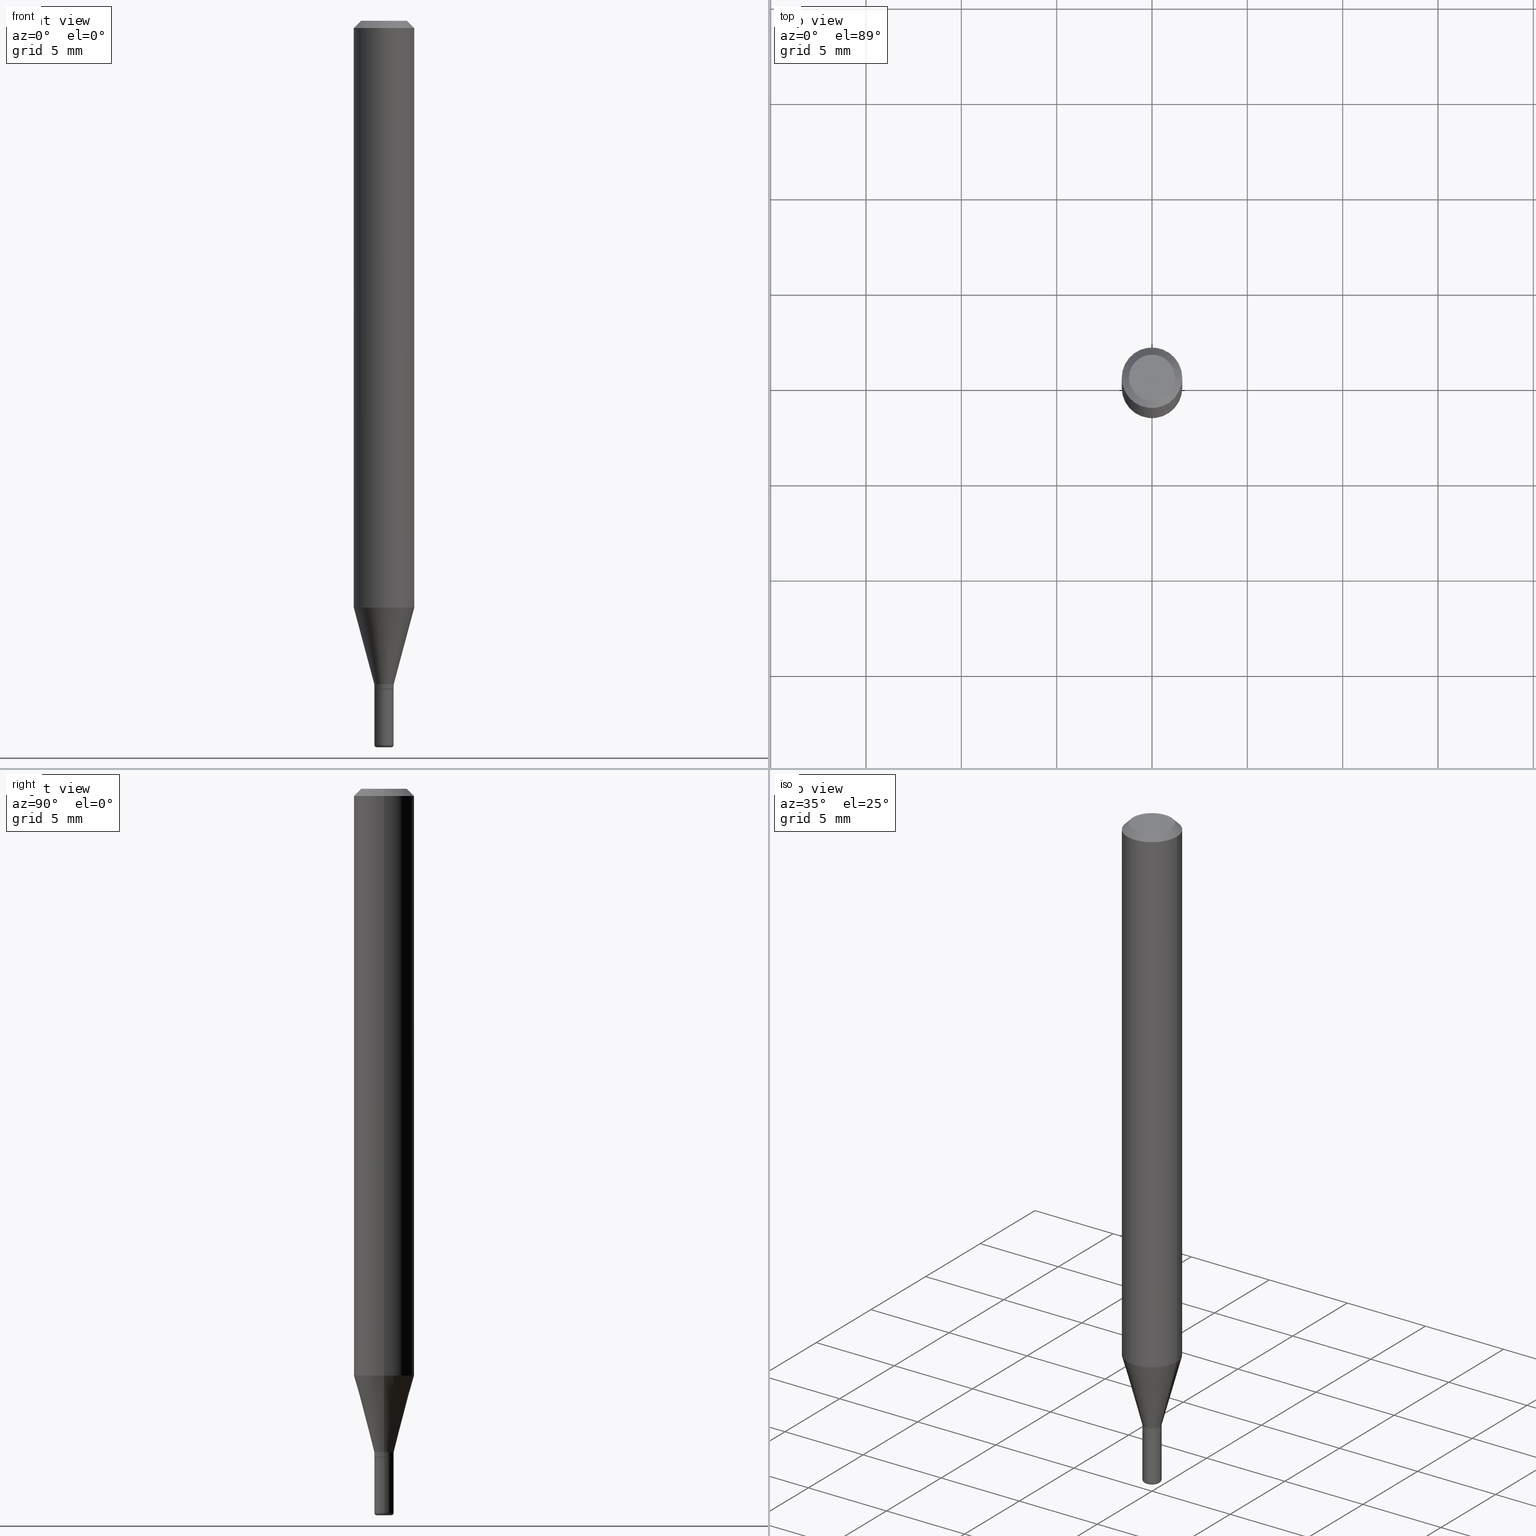
[diagram: canonical four-view strip — front | top / right | iso, engineering-drawing reading convention]
A machine part, canonical four-view strip (front | top / right | iso — engineering-drawing reading convention). The complete STEP part file that produces these views, byte-faithful:
ISO-10303-21;
HEADER;
FILE_DESCRIPTION (( 'STEP AP203' ),
    '1' );
FILE_NAME ('08514.STEP',
    '2024-02-29T19:40:19',
    ( '' ),
    ( '' ),
    'SwSTEP 2.0',
    'SolidWorks 2023',
    '' );
FILE_SCHEMA (( 'CONFIG_CONTROL_DESIGN' ));
ENDSEC;

DATA;
#1 = CC_DESIGN_APPROVAL ( #310, ( #340 ) ) ;
#2 = EDGE_LOOP ( 'NONE', ( #160, #446, #58, #206 ) ) ;
#3 = APPROVAL_STATUS ( 'not_yet_approved' ) ;
#4 = ORIENTED_EDGE ( 'NONE', *, *, #103, .T. ) ;
#5 = ORIENTED_EDGE ( 'NONE', *, *, #415, .F. ) ;
#6 = VECTOR ( 'NONE', #191, 39.37007874015748854 ) ;
#7 = ORIENTED_EDGE ( 'NONE', *, *, #27, .T. ) ;
#8 = APPROVAL_PERSON_ORGANIZATION ( #278, #310, #272 ) ;
#9 = DIRECTION ( 'NONE',  ( 1.000000000000000000, 0.000000000000000000, 0.000000000000000000 ) ) ;
#10 = ORIENTED_EDGE ( 'NONE', *, *, #398, .F. ) ;
#11 = DIRECTION ( 'NONE',  ( -2.445468806185136597E-29, 3.491481338843145583E-15, 1.000000000000000000 ) ) ;
#12 = ADVANCED_FACE ( 'NONE', ( #214 ), #100, .T. ) ;
#13 = CYLINDRICAL_SURFACE ( 'NONE', #443, 0.06250000000000000000 ) ;
#14 = DIRECTION ( 'NONE',  ( 1.000000000000000000, -6.982962677686256455E-15, 0.000000000000000000 ) ) ;
#15 = DIRECTION ( 'NONE',  ( 1.000000000000000000, -6.982962677686265922E-15, 4.876176775795934672E-29 ) ) ;
#16 = CIRCLE ( 'NONE', #85, 0.02000000000000008021 ) ;
#17 = CARTESIAN_POINT ( 'NONE',  ( 0.02000000000000009062, -1.396592535537259554E-16, 9.752353551591915727E-31 ) ) ;
#18 = DIRECTION ( 'NONE',  ( -2.445468806185136597E-29, 3.491481338843145583E-15, 1.000000000000000000 ) ) ;
#19 = CARTESIAN_POINT ( 'NONE',  ( 3.350292264473637608E-29, -4.783329434215110683E-15, -1.370000000000000329 ) ) ;
#20 = EDGE_LOOP ( 'NONE', ( #5, #487, #90, #393 ) ) ;
#21 = DIRECTION ( 'NONE',  ( 2.445468806185136597E-29, -3.491481338843145583E-15, -1.000000000000000000 ) ) ;
#22 = CIRCLE ( 'NONE', #242, 0.02000000000000018083 ) ;
#23 = CARTESIAN_POINT ( 'NONE',  ( 0.06250000000000000000, -4.811533449433669144E-16, -0.01499999999999970281 ) ) ;
#24 = APPLICATION_CONTEXT ( 'configuration controlled 3d designs of mechanical parts and assemblies' ) ;
#25 = CARTESIAN_POINT ( 'NONE',  ( 2.962411176570810218E-29, -4.229538039829860109E-15, -1.211387840678323391 ) ) ;
#26 = CARTESIAN_POINT ( 'NONE',  ( 3.374746952535488593E-29, -4.818244247603541543E-15, -1.380000000000000115 ) ) ;
#27 = EDGE_CURVE ( 'NONE', #93, #367, #243, .T. ) ;
#28 = EDGE_CURVE ( 'NONE', #244, #88, #291, .T. ) ;
#29 = DIRECTION ( 'NONE',  ( -1.000000000000000000, 6.982962677686266711E-15, 0.000000000000000000 ) ) ;
#30 = DIRECTION ( 'NONE',  ( 1.000000000000000000, -6.982962677686266711E-15, 4.876176775795935793E-29 ) ) ;
#31 = DIRECTION ( 'NONE',  ( -2.445468806185136597E-29, 3.491481338843145583E-15, 1.000000000000000000 ) ) ;
#32 = CARTESIAN_POINT ( 'NONE',  ( 3.374746952535488593E-29, -4.818244247603541543E-15, -1.380000000000000115 ) ) ;
#33 = COORDINATED_UNIVERSAL_TIME_OFFSET ( 5, 0, .BEHIND. ) ;
#34 = AXIS2_PLACEMENT_3D ( 'NONE', #113, #195, #510 ) ;
#35 = DIRECTION ( 'NONE',  ( 1.000000000000000000, -6.982962677686276177E-15, 0.000000000000000000 ) ) ;
#36 = APPROVAL_ROLE ( '' ) ;
#37 = CARTESIAN_POINT ( 'NONE',  ( -0.02000000000000008021, -4.213334858521442823E-15, -1.370000000000000329 ) ) ;
#38 = CALENDAR_DATE ( 2024, 29, 2 ) ;
#39 = VERTEX_POINT ( 'NONE', #96 ) ;
#40 = DIMENSIONAL_EXPONENTS ( 1.000000000000000000, 0.000000000000000000, 0.000000000000000000, 0.000000000000000000, 0.000000000000000000, 0.000000000000000000, 0.000000000000000000 ) ;
#41 = SECURITY_CLASSIFICATION_LEVEL ( 'unclassified' ) ;
#42 = EDGE_LOOP ( 'NONE', ( #81, #459, #164, #336 ) ) ;
#43 = UNCERTAINTY_MEASURE_WITH_UNIT (LENGTH_MEASURE( 1.000000000000000082E-05 ), #220, 'distance_accuracy_value', 'NONE');
#44 = EDGE_CURVE ( 'NONE', #256, #127, #129, .T. ) ;
#45 = ADVANCED_BREP_SHAPE_REPRESENTATION ( '08514', ( #123, #457, #159 ), #315 ) ;
#46 = ORIENTED_EDGE ( 'NONE', *, *, #493, .T. ) ;
#47 = EDGE_LOOP ( 'NONE', ( #279, #54, #126, #198 ) ) ;
#48 = CONICAL_SURFACE ( 'NONE', #185, 0.01950000000000008671, 0.7853981633972775267 ) ;
#49 = ORIENTED_EDGE ( 'NONE', *, *, #99, .F. ) ;
#50 = LOCAL_TIME ( 14, 40, 19.00000000000000000, #33 ) ;
#51 = EDGE_CURVE ( 'NONE', #244, #516, #250, .T. ) ;
#52 = MECHANICAL_CONTEXT ( 'NONE', #489, 'mechanical' ) ;
#53 = FACE_OUTER_BOUND ( 'NONE', #209, .T. ) ;
#54 = ORIENTED_EDGE ( 'NONE', *, *, #397, .T. ) ;
#55 = CARTESIAN_POINT ( 'NONE',  ( 0.000000000000000000, 0.000000000000000000, 0.000000000000000000 ) ) ;
#56 = DIRECTION ( 'NONE',  ( -2.445468806185136597E-29, 3.491481338843145583E-15, 1.000000000000000000 ) ) ;
#57 = DIRECTION ( 'NONE',  ( -0.7071067811865479058, 2.468850131082261005E-15, -0.7071067811865471286 ) ) ;
#58 = ORIENTED_EDGE ( 'NONE', *, *, #44, .T. ) ;
#59 = LENGTH_MEASURE_WITH_UNIT ( LENGTH_MEASURE( 0.02539999999999999897 ), #264 );
#60 = LINE ( 'NONE', #255, #64 ) ;
#61 = CARTESIAN_POINT ( 'NONE',  ( 3.655975865246779122E-29, -5.219764601570503141E-15, -1.495000000000000107 ) ) ;
#62 = DIRECTION ( 'NONE',  ( 1.000000000000000000, -6.982962677686276177E-15, 0.000000000000000000 ) ) ;
#63 = DIRECTION ( 'NONE',  ( -1.000000000000000000, 7.105427357601058657E-15, 0.000000000000000000 ) ) ;
#64 = VECTOR ( 'NONE', #211, 39.37007874015748143 ) ;
#65 = CIRCLE ( 'NONE', #305, 0.06250000000000000000 ) ;
#66 = LINE ( 'NONE', #352, #295 ) ;
#67 = ADVANCED_FACE ( 'NONE', ( #53 ), #13, .T. ) ;
#68 = EDGE_CURVE ( 'NONE', #127, #403, #218, .T. ) ;
#69 = DIRECTION ( 'NONE',  ( -2.445468806185136597E-29, 3.491481338843145583E-15, 1.000000000000000000 ) ) ;
#70 = CARTESIAN_POINT ( 'NONE',  ( -0.02000000000000008021, -4.641220887063090519E-15, -1.370000000000000329 ) ) ;
#71 = CC_DESIGN_PERSON_AND_ORGANIZATION_ASSIGNMENT ( #396, #355, ( #479 ) ) ;
#72 = DIRECTION ( 'NONE',  ( 1.000000000000000000, -6.982962677686269866E-15, 4.883557194083113462E-29 ) ) ;
#73 = CARTESIAN_POINT ( 'NONE',  ( 0.06250000000000000000, -4.665973207185250989E-15, -1.211387840678323391 ) ) ;
#74 = DATE_AND_TIME ( #392, #141 ) ;
#75 = DIRECTION ( 'NONE',  ( -0.7071067811864267805, 7.493145998869918709E-15, 0.7071067811866682540 ) ) ;
#76 = APPROVAL_DATE_TIME ( #74, #84 ) ;
#77 = CIRCLE ( 'NONE', #357, 0.04750000000000000749 ) ;
#78 = AXIS2_PLACEMENT_3D ( 'NONE', #505, #69, #152 ) ;
#79 = ORIENTED_EDGE ( 'NONE', *, *, #28, .T. ) ;
#80 = DIRECTION ( 'NONE',  ( 1.000000000000000000, -6.982962677686256455E-15, 0.000000000000000000 ) ) ;
#81 = ORIENTED_EDGE ( 'NONE', *, *, #184, .F. ) ;
#82 = PERSON_AND_ORGANIZATION_ROLE ( 'creator' ) ;
#83 = ORIENTED_EDGE ( 'NONE', *, *, #415, .T. ) ;
#84 = APPROVAL ( #189, 'UNSPECIFIED' ) ;
#85 = AXIS2_PLACEMENT_3D ( 'NONE', #387, #31, #424 ) ;
#86 = EDGE_CURVE ( 'NONE', #114, #256, #332, .T. ) ;
#87 = CONICAL_SURFACE ( 'NONE', #132, 0.06250000000000000000, 0.7853981633974488341 ) ;
#88 = VERTEX_POINT ( 'NONE', #296 ) ;
#89 = ORIENTED_EDGE ( 'NONE', *, *, #237, .T. ) ;
#90 = ORIENTED_EDGE ( 'NONE', *, *, #343, .T. ) ;
#91 = APPLICATION_PROTOCOL_DEFINITION ( 'international standard', 'config_control_design', 1994, #24 ) ;
#92 = CONICAL_SURFACE ( 'NONE', #263, 0.02000000000000008021, 0.2617993877991493523 ) ;
#93 = VERTEX_POINT ( 'NONE', #337 ) ;
#94 = LOCAL_TIME ( 14, 40, 19.00000000000000000, #121 ) ;
#95 = ORIENTED_EDGE ( 'NONE', *, *, #138, .F. ) ;
#96 = CARTESIAN_POINT ( 'NONE',  ( -0.04750000000000000749, 3.578768372314221353E-16, 2.731847993664239060E-16 ) ) ;
#97 = PRODUCT ( '08514', '08514', '', ( #52 ) ) ;
#98 = DIRECTION ( 'NONE',  ( -2.438088387897960049E-29, 3.491481338843145188E-15, 1.000000000000000000 ) ) ;
#99 = EDGE_CURVE ( 'NONE', #127, #498, #441, .T. ) ;
#100 = CYLINDRICAL_SURFACE ( 'NONE', #316, 0.02000000000000008715 ) ;
#101 = AXIS2_PLACEMENT_3D ( 'NONE', #331, #280, #333 ) ;
#102 = FACE_OUTER_BOUND ( 'NONE', #354, .T. ) ;
#103 = EDGE_CURVE ( 'NONE', #325, #399, #130, .T. ) ;
#104 = DIRECTION ( 'NONE',  ( -2.445468806185136597E-29, 3.491481338843145583E-15, 1.000000000000000000 ) ) ;
#105 = CARTESIAN_POINT ( 'NONE',  ( 3.374746952535488593E-29, -4.818244247603541543E-15, -1.380000000000000115 ) ) ;
#106 = CARTESIAN_POINT ( 'NONE',  ( 3.655975865246779683E-29, -5.219764601570503930E-15, -1.495000000000000329 ) ) ;
#107 = AXIS2_PLACEMENT_3D ( 'NONE', #105, #262, #425 ) ;
#108 = APPROVAL_PERSON_ORGANIZATION ( #409, #84, #269 ) ;
#109 = FACE_OUTER_BOUND ( 'NONE', #203, .T. ) ;
#110 = CARTESIAN_POINT ( 'NONE',  ( -0.01499999999999999944, -5.113183191206488018E-15, -1.495000000000000107 ) ) ;
#111 = CARTESIAN_POINT ( 'NONE',  ( 3.655975865246779683E-29, -5.219764601570503930E-15, -1.495000000000000329 ) ) ;
#112 =( NAMED_UNIT ( * ) PLANE_ANGLE_UNIT ( ) SI_UNIT ( $, .RADIAN. ) );
#113 = CARTESIAN_POINT ( 'NONE',  ( 3.668203209277632395E-31, -5.237222008264614861E-17, -0.01499999999999970281 ) ) ;
#114 = VERTEX_POINT ( 'NONE', #377 ) ;
#115 = CARTESIAN_POINT ( 'NONE',  ( 1.396592535537590876E-16, 0.01999999999999518135, -1.380000000000000115 ) ) ;
#116 = COORDINATED_UNIVERSAL_TIME_OFFSET ( 5, 0, .BEHIND. ) ;
#117 = CONICAL_SURFACE ( 'NONE', #34, 0.06250000000000000000, 0.7853981633974488341 ) ;
#118 = VERTEX_POINT ( 'NONE', #365 ) ;
#119 = VERTEX_POINT ( 'NONE', #260 ) ;
#120 = EDGE_CURVE ( 'NONE', #118, #322, #137, .T. ) ;
#121 = COORDINATED_UNIVERSAL_TIME_OFFSET ( 5, 0, .BEHIND. ) ;
#122 = ADVANCED_FACE ( 'NONE', ( #497 ), #248, .T. ) ;
#123 = MANIFOLD_SOLID_BREP ( 'Body-Move/Copy2[1]', #408 ) ;
#124 = ORIENTED_EDGE ( 'NONE', *, *, #493, .F. ) ;
#125 = CIRCLE ( 'NONE', #150, 0.005000000000000179648 ) ;
#126 = ORIENTED_EDGE ( 'NONE', *, *, #274, .T. ) ;
#127 = VERTEX_POINT ( 'NONE', #290 ) ;
#128 = CARTESIAN_POINT ( 'NONE',  ( 0.000000000000000000, 0.000000000000000000, 0.000000000000000000 ) ) ;
#129 = LINE ( 'NONE', #258, #133 ) ;
#130 = LINE ( 'NONE', #423, #390 ) ;
#131 = EDGE_LOOP ( 'NONE', ( #282, #241 ) ) ;
#132 = AXIS2_PLACEMENT_3D ( 'NONE', #383, #21, #29 ) ;
#133 = VECTOR ( 'NONE', #366, 39.37007874015748143 ) ;
#134 = DIRECTION ( 'NONE',  ( -2.445468806185136877E-29, 3.491481338843145188E-15, 1.000000000000000000 ) ) ;
#135 = DIRECTION ( 'NONE',  ( -2.445468806185136597E-29, 3.491481338843145583E-15, 1.000000000000000000 ) ) ;
#136 = APPROVAL ( #3, 'UNSPECIFIED' ) ;
#137 = LINE ( 'NONE', #17, #426 ) ;
#138 = EDGE_CURVE ( 'NONE', #39, #440, #462, .T. ) ;
#139 = ORIENTED_EDGE ( 'NONE', *, *, #44, .F. ) ;
#140 = DIRECTION ( 'NONE',  ( 1.000000000000000000, -6.982962677686276177E-15, 0.000000000000000000 ) ) ;
#141 = LOCAL_TIME ( 14, 40, 19.00000000000000000, #433 ) ;
#142 = CYLINDRICAL_SURFACE ( 'NONE', #208, 0.02000000000000009062 ) ;
#143 = DIRECTION ( 'NONE',  ( 1.000000000000000000, -6.982962677686265922E-15, 4.876176775795935793E-29 ) ) ;
#144 = ADVANCED_FACE ( 'NONE', ( #420 ), #374, .T. ) ;
#145 = CARTESIAN_POINT ( 'NONE',  ( 0.000000000000000000, 0.000000000000000000, 0.000000000000000000 ) ) ;
#146 = DIRECTION ( 'NONE',  ( 1.000000000000000000, -6.982962677686269077E-15, 0.000000000000000000 ) ) ;
#147 = DIRECTION ( 'NONE',  ( 1.000000000000000000, -6.982962677686269077E-15, 0.000000000000000000 ) ) ;
#148 = DIRECTION ( 'NONE',  ( -2.445468806185136597E-29, 3.491481338843145583E-15, 1.000000000000000000 ) ) ;
#149 = DIRECTION ( 'NONE',  ( -2.445468806185136597E-29, 3.491481338843145583E-15, 1.000000000000000000 ) ) ;
#150 = AXIS2_PLACEMENT_3D ( 'NONE', #110, #182, #63 ) ;
#151 = DIRECTION ( 'NONE',  ( -2.445468806185136597E-29, 3.491481338843145583E-15, 1.000000000000000000 ) ) ;
#152 = DIRECTION ( 'NONE',  ( 1.000000000000000000, -6.982962677686266711E-15, 0.000000000000000000 ) ) ;
#153 = DIRECTION ( 'NONE',  ( 1.000000000000000000, -6.982962677686284065E-15, 0.000000000000000000 ) ) ;
#154 = CALENDAR_DATE ( 2024, 29, 2 ) ;
#155 = FACE_OUTER_BOUND ( 'NONE', #131, .T. ) ;
#156 = ORIENTED_EDGE ( 'NONE', *, *, #398, .T. ) ;
#157 = AXIS2_PLACEMENT_3D ( 'NONE', #55, #411, #143 ) ;
#158 = DESIGN_CONTEXT ( 'detailed design', #24, 'design' ) ;
#159 = AXIS2_PLACEMENT_3D ( 'NONE', #128, #321, #9 ) ;
#160 = ORIENTED_EDGE ( 'NONE', *, *, #267, .F. ) ;
#161 = ADVANCED_FACE ( 'NONE', ( #464 ), #165, .T. ) ;
#162 = PERSON_AND_ORGANIZATION_ROLE ( 'creator' ) ;
#163 = ORIENTED_EDGE ( 'NONE', *, *, #509, .T. ) ;
#164 = ORIENTED_EDGE ( 'NONE', *, *, #68, .T. ) ;
#165 = CONICAL_SURFACE ( 'NONE', #215, 0.02000000000000008021, 0.2617993877991493523 ) ;
#166 = APPROVAL_PERSON_ORGANIZATION ( #477, #136, #36 ) ;
#167 = EDGE_LOOP ( 'NONE', ( #201, #4, #362, #356 ) ) ;
#168 = PERSON_AND_ORGANIZATION ( #368, #494 ) ;
#169 = ORIENTED_EDGE ( 'NONE', *, *, #274, .F. ) ;
#170 = DIRECTION ( 'NONE',  ( -2.445468806185136597E-29, 3.491481338843145583E-15, 1.000000000000000000 ) ) ;
#171 = CARTESIAN_POINT ( 'NONE',  ( 0.000000000000000000, 0.000000000000000000, 0.000000000000000000 ) ) ;
#172 = DIRECTION ( 'NONE',  ( -2.445468806185136597E-29, 3.491481338843145583E-15, 1.000000000000000000 ) ) ;
#173 = AXIS2_PLACEMENT_3D ( 'NONE', #199, #436, #80 ) ;
#174 = CARTESIAN_POINT ( 'NONE',  ( 3.668203209277706016E-29, -5.237222008264719754E-15, -1.500000000000000444 ) ) ;
#175 = AXIS2_PLACEMENT_3D ( 'NONE', #338, #104, #419 ) ;
#176 = EDGE_CURVE ( 'NONE', #256, #114, #304, .T. ) ;
#177 = ADVANCED_FACE ( 'NONE', ( #102 ), #454, .F. ) ;
#178 = DIRECTION ( 'NONE',  ( 1.000000000000000000, -6.982962677686276177E-15, 0.000000000000000000 ) ) ;
#179 = ORIENTED_EDGE ( 'NONE', *, *, #267, .T. ) ;
#180 = CARTESIAN_POINT ( 'NONE',  ( 3.374746952535488593E-29, -4.818244247603541543E-15, -1.380000000000000115 ) ) ;
#181 = DIRECTION ( 'NONE',  ( -2.445468806185136597E-29, 3.491481338843145583E-15, 1.000000000000000000 ) ) ;
#182 = DIRECTION ( 'NONE',  ( 7.105427357601001859E-15, 1.000000000000000000, -3.491481338843145583E-15 ) ) ;
#183 = CARTESIAN_POINT ( 'NONE',  ( 3.374746952535488593E-29, -4.818244247603541543E-15, -1.380000000000000115 ) ) ;
#184 = EDGE_CURVE ( 'NONE', #498, #395, #60, .T. ) ;
#185 = AXIS2_PLACEMENT_3D ( 'NONE', #32, #430, #35 ) ;
#186 = CC_DESIGN_APPROVAL ( #84, ( #359 ) ) ;
#187 = CARTESIAN_POINT ( 'NONE',  ( -0.02000000000000000042, -4.876895877435002179E-15, -1.380000000000000115 ) ) ;
#188 = LINE ( 'NONE', #70, #6 ) ;
#189 = APPROVAL_STATUS ( 'not_yet_approved' ) ;
#190 = FACE_OUTER_BOUND ( 'NONE', #418, .T. ) ;
#191 = DIRECTION ( 'NONE',  ( -0.2588190451025206285, 5.211531920934544731E-15, 0.9659258262890682012 ) ) ;
#192 = CARTESIAN_POINT ( 'NONE',  ( 0.02000000000000008021, -4.922988687768836490E-15, -1.370000000000000329 ) ) ;
#193 = DIRECTION ( 'NONE',  ( 1.000000000000000000, -6.982962677686252511E-15, 0.000000000000000000 ) ) ;
#194 = AXIS2_PLACEMENT_3D ( 'NONE', #106, #350, #147 ) ;
#195 = DIRECTION ( 'NONE',  ( 2.445468806185136597E-29, -3.491481338843145583E-15, -1.000000000000000000 ) ) ;
#196 = CARTESIAN_POINT ( 'NONE',  ( 0.01950000000000008671, -4.954412019818424343E-15, -1.380000000000000115 ) ) ;
#197 = CALENDAR_DATE ( 2024, 29, 2 ) ;
#198 = ORIENTED_EDGE ( 'NONE', *, *, #439, .F. ) ;
#199 = CARTESIAN_POINT ( 'NONE',  ( 3.350292264473637608E-29, -4.783329434215110683E-15, -1.370000000000000329 ) ) ;
#200 = ADVANCED_FACE ( 'NONE', ( #219 ), #485, .T. ) ;
#201 = ORIENTED_EDGE ( 'NONE', *, *, #515, .T. ) ;
#202 = COORDINATED_UNIVERSAL_TIME_OFFSET ( 5, 0, .BEHIND. ) ;
#203 = EDGE_LOOP ( 'NONE', ( #156, #404, #456, #169 ) ) ;
#204 = PERSON_AND_ORGANIZATION_ROLE ( 'classification_officer' ) ;
#205 = ORIENTED_EDGE ( 'NONE', *, *, #319, .F. ) ;
#206 = ORIENTED_EDGE ( 'NONE', *, *, #268, .F. ) ;
#207 = AXIS2_PLACEMENT_3D ( 'NONE', #115, #432, #504 ) ;
#208 = AXIS2_PLACEMENT_3D ( 'NONE', #145, #224, #298 ) ;
#209 = EDGE_LOOP ( 'NONE', ( #334, #275, #317, #245 ) ) ;
#210 = ORIENTED_EDGE ( 'NONE', *, *, #287, .T. ) ;
#211 = DIRECTION ( 'NONE',  ( -2.445468806185136877E-29, 3.491481338843145188E-15, 1.000000000000000000 ) ) ;
#212 = ADVANCED_FACE ( 'NONE', ( #413 ), #335, .T. ) ;
#213 = EDGE_CURVE ( 'NONE', #516, #440, #311, .T. ) ;
#214 = FACE_OUTER_BOUND ( 'NONE', #42, .T. ) ;
#215 = AXIS2_PLACEMENT_3D ( 'NONE', #19, #170, #14 ) ;
#216 = AXIS2_PLACEMENT_3D ( 'NONE', #183, #172, #178 ) ;
#217 = ORIENTED_EDGE ( 'NONE', *, *, #138, .T. ) ;
#218 = LINE ( 'NONE', #375, #495 ) ;
#219 = FACE_OUTER_BOUND ( 'NONE', #286, .T. ) ;
#220 =( CONVERSION_BASED_UNIT ( 'INCH', #59 ) LENGTH_UNIT ( ) NAMED_UNIT ( #40 ) );
#221 = CARTESIAN_POINT ( 'NONE',  ( 0.000000000000000000, 0.000000000000000000, 0.000000000000000000 ) ) ;
#222 = CIRCLE ( 'NONE', #276, 0.02000000000000009062 ) ;
#223 = CC_DESIGN_APPROVAL ( #136, ( #479 ) ) ;
#224 = DIRECTION ( 'NONE',  ( -2.445468806185136597E-29, 3.491481338843145583E-15, 1.000000000000000000 ) ) ;
#225 = DIRECTION ( 'NONE',  ( -2.445468806185136597E-29, 3.491481338843145583E-15, 1.000000000000000000 ) ) ;
#226 = PLANE ( 'NONE',  #358 ) ;
#227 = DIRECTION ( 'NONE',  ( -2.445468806185136597E-29, 3.491481338843145583E-15, 1.000000000000000000 ) ) ;
#228 = CC_DESIGN_DATE_AND_TIME_ASSIGNMENT ( #318, #431, ( #359 ) ) ;
#229 = EDGE_CURVE ( 'NONE', #395, #516, #188, .T. ) ;
#230 = CARTESIAN_POINT ( 'NONE',  ( 3.668203209277632395E-31, -5.237222008264614861E-17, -0.01499999999999970281 ) ) ;
#231 = CARTESIAN_POINT ( 'NONE',  ( 3.373524218132395792E-29, -4.816498506934119251E-15, -1.379499999999999948 ) ) ;
#232 = PERSON_AND_ORGANIZATION ( #368, #494 ) ;
#233 = VECTOR ( 'NONE', #506, 39.37007874015748143 ) ;
#234 = CIRCLE ( 'NONE', #194, 0.02000000000000018083 ) ;
#235 = DIRECTION ( 'NONE',  ( -6.982962677686266711E-15, -1.000000000000000000, 3.491481338843145583E-15 ) ) ;
#236 = ORIENTED_EDGE ( 'NONE', *, *, #27, .F. ) ;
#237 = EDGE_CURVE ( 'NONE', #88, #440, #449, .T. ) ;
#238 = DIRECTION ( 'NONE',  ( 1.000000000000000000, -6.982962677686256455E-15, 0.000000000000000000 ) ) ;
#239 = ORIENTED_EDGE ( 'NONE', *, *, #176, .T. ) ;
#240 = DATE_AND_TIME ( #38, #450 ) ;
#241 = ORIENTED_EDGE ( 'NONE', *, *, #319, .T. ) ;
#242 = AXIS2_PLACEMENT_3D ( 'NONE', #111, #379, #146 ) ;
#243 = CIRCLE ( 'NONE', #265, 0.01500000000000000291 ) ;
#244 = VERTEX_POINT ( 'NONE', #73 ) ;
#245 = ORIENTED_EDGE ( 'NONE', *, *, #28, .F. ) ;
#246 = APPLICATION_PROTOCOL_DEFINITION ( 'international standard', 'config_control_design', 1994, #489 ) ;
#247 = ORIENTED_EDGE ( 'NONE', *, *, #252, .F. ) ;
#248 = TOROIDAL_SURFACE ( 'NONE', #400, 0.01499999999999999944, 0.005000000000000177913 ) ;
#249 = CIRCLE ( 'NONE', #175, 0.04750000000000000749 ) ;
#250 = CIRCLE ( 'NONE', #382, 0.06250000000000000000 ) ;
#251 = EDGE_LOOP ( 'NONE', ( #412, #254, #10, #364 ) ) ;
#252 = EDGE_CURVE ( 'NONE', #119, #88, #303, .T. ) ;
#253 = ADVANCED_FACE ( 'NONE', ( #277 ), #48, .T. ) ;
#254 = ORIENTED_EDGE ( 'NONE', *, *, #184, .T. ) ;
#255 = CARTESIAN_POINT ( 'NONE',  ( -0.02000000000000008715, 1.421085471520206564E-16, -9.837870180509852832E-31 ) ) ;
#256 = VERTEX_POINT ( 'NONE', #196 ) ;
#257 = AXIS2_PLACEMENT_3D ( 'NONE', #25, #149, #341 ) ;
#258 = CARTESIAN_POINT ( 'NONE',  ( 0.01950000000000008671, -4.954412019818424343E-15, -1.380000000000000115 ) ) ;
#259 = DIRECTION ( 'NONE',  ( 1.000000000000000000, -6.982962677686265922E-15, 4.876176775795935793E-29 ) ) ;
#260 = CARTESIAN_POINT ( 'NONE',  ( 0.04750000000000000749, -4.035134999187568762E-16, 2.731847993664288856E-16 ) ) ;
#261 = DIRECTION ( 'NONE',  ( -2.438088387897960049E-29, 3.491481338843145188E-15, 1.000000000000000000 ) ) ;
#262 = DIRECTION ( 'NONE',  ( -2.445468806185136597E-29, 3.491481338843145583E-15, 1.000000000000000000 ) ) ;
#263 = AXIS2_PLACEMENT_3D ( 'NONE', #266, #394, #238 ) ;
#264 =( LENGTH_UNIT ( ) NAMED_UNIT ( * ) SI_UNIT ( $, .METRE. ) );
#265 = AXIS2_PLACEMENT_3D ( 'NONE', #174, #496, #329 ) ;
#266 = CARTESIAN_POINT ( 'NONE',  ( 3.350292264473637608E-29, -4.783329434215110683E-15, -1.370000000000000329 ) ) ;
#267 = EDGE_CURVE ( 'NONE', #114, #498, #66, .T. ) ;
#268 = EDGE_CURVE ( 'NONE', #498, #127, #222, .T. ) ;
#269 = APPROVAL_ROLE ( '' ) ;
#270 = CARTESIAN_POINT ( 'NONE',  ( -0.06250000000000000000, -3.785448829979796704E-15, -1.211387840678323391 ) ) ;
#271 = CARTESIAN_POINT ( 'NONE',  ( 3.668203209277632395E-31, -5.237222008264614861E-17, -0.01499999999999970281 ) ) ;
#272 = APPROVAL_ROLE ( '' ) ;
#273 = PLANE ( 'NONE',  #207 ) ;
#274 = EDGE_CURVE ( 'NONE', #403, #244, #346, .T. ) ;
#275 = ORIENTED_EDGE ( 'NONE', *, *, #213, .T. ) ;
#276 = AXIS2_PLACEMENT_3D ( 'NONE', #231, #384, #193 ) ;
#277 = FACE_OUTER_BOUND ( 'NONE', #2, .T. ) ;
#278 = PERSON_AND_ORGANIZATION ( #368, #494 ) ;
#279 = ORIENTED_EDGE ( 'NONE', *, *, #229, .F. ) ;
#280 = DIRECTION ( 'NONE',  ( -2.445468806185136597E-29, 3.491481338843145583E-15, 1.000000000000000000 ) ) ;
#281 = EDGE_LOOP ( 'NONE', ( #163, #210 ) ) ;
#282 = ORIENTED_EDGE ( 'NONE', *, *, #372, .T. ) ;
#283 = VECTOR ( 'NONE', #57, 39.37007874015748143 ) ;
#284 = ORIENTED_EDGE ( 'NONE', *, *, #480, .F. ) ;
#285 = ORIENTED_EDGE ( 'NONE', *, *, #343, .F. ) ;
#286 = EDGE_LOOP ( 'NONE', ( #239, #179, #49, #139 ) ) ;
#287 = EDGE_CURVE ( 'NONE', #119, #39, #77, .T. ) ;
#288 = VECTOR ( 'NONE', #476, 39.37007874015748854 ) ;
#289 = EDGE_LOOP ( 'NONE', ( #442, #445, #79, #124 ) ) ;
#290 = CARTESIAN_POINT ( 'NONE',  ( 0.02000000000000009062, -4.956157760487845847E-15, -1.379499999999999948 ) ) ;
#291 = LINE ( 'NONE', #327, #401 ) ;
#292 = CARTESIAN_POINT ( 'NONE',  ( -0.06250000000000000000, 3.840629472727455270E-16, -0.01499999999999970281 ) ) ;
#293 = ORIENTED_EDGE ( 'NONE', *, *, #103, .F. ) ;
#294 = DIRECTION ( 'NONE',  ( 1.000000000000000000, -6.982962677686269866E-15, 4.883557194083113462E-29 ) ) ;
#295 = VECTOR ( 'NONE', #75, 39.37007874015748143 ) ;
#296 = CARTESIAN_POINT ( 'NONE',  ( 0.06250000000000000000, -4.888073874380378612E-16, -0.01499999999999970281 ) ) ;
#297 = PRODUCT_RELATED_PRODUCT_CATEGORY ( 'detail', '', ( #97 ) ) ;
#298 = DIRECTION ( 'NONE',  ( 1.000000000000000000, -6.982962677686265922E-15, 4.876176775795935793E-29 ) ) ;
#299 = DIRECTION ( 'NONE',  ( 1.000000000000000000, -6.982962677686266711E-15, 4.852736867747365086E-29 ) ) ;
#300 = ADVANCED_FACE ( 'NONE', ( #308 ), #307, .T. ) ;
#301 = PLANE ( 'NONE',  #323 ) ;
#302 = ADVANCED_FACE ( 'NONE', ( #351 ), #117, .T. ) ;
#303 = LINE ( 'NONE', #23, #233 ) ;
#304 = CIRCLE ( 'NONE', #469, 0.01950000000000008671 ) ;
#305 = AXIS2_PLACEMENT_3D ( 'NONE', #230, #473, #508 ) ;
#306 = CARTESIAN_POINT ( 'NONE',  ( -0.02000000000000009062, -4.674389959782099087E-15, -1.379499999999999948 ) ) ;
#307 = CYLINDRICAL_SURFACE ( 'NONE', #339, 0.02000000000000008715 ) ;
#308 = FACE_OUTER_BOUND ( 'NONE', #251, .T. ) ;
#309 = DATE_TIME_ROLE ( 'classification_date' ) ;
#310 = APPROVAL ( #361, 'UNSPECIFIED' ) ;
#311 = LINE ( 'NONE', #388, #381 ) ;
#312 = CALENDAR_DATE ( 2024, 29, 2 ) ;
#313 = ORIENTED_EDGE ( 'NONE', *, *, #120, .T. ) ;
#314 = CIRCLE ( 'NONE', #173, 0.02000000000000008021 ) ;
#315 =( GEOMETRIC_REPRESENTATION_CONTEXT ( 3 ) GLOBAL_UNCERTAINTY_ASSIGNED_CONTEXT ( ( #43 ) ) GLOBAL_UNIT_ASSIGNED_CONTEXT ( ( #220, #112, #422 ) ) REPRESENTATION_CONTEXT ( 'NONE', 'WORKASPACE' ) );
#316 = AXIS2_PLACEMENT_3D ( 'NONE', #406, #135, #15 ) ;
#317 = ORIENTED_EDGE ( 'NONE', *, *, #237, .F. ) ;
#318 = DATE_AND_TIME ( #312, #94 ) ;
#319 = EDGE_CURVE ( 'NONE', #399, #322, #407, .T. ) ;
#320 = CC_DESIGN_PERSON_AND_ORGANIZATION_ASSIGNMENT ( #402, #82, ( #479 ) ) ;
#321 = DIRECTION ( 'NONE',  ( 0.000000000000000000, 0.000000000000000000, 1.000000000000000000 ) ) ;
#322 = VERTEX_POINT ( 'NONE', #468 ) ;
#323 = AXIS2_PLACEMENT_3D ( 'NONE', #378, #261, #427 ) ;
#324 = CIRCLE ( 'NONE', #78, 0.01500000000000000291 ) ;
#325 = VERTEX_POINT ( 'NONE', #474 ) ;
#326 = ADVANCED_FACE ( 'NONE', ( #155 ), #273, .F. ) ;
#327 = CARTESIAN_POINT ( 'NONE',  ( 0.06250000000000000000, -4.364351673553916694E-16, 3.047610484872459871E-30 ) ) ;
#328 = CARTESIAN_POINT ( 'NONE',  ( 3.655975865246779122E-29, -5.219764601570503141E-15, -1.495000000000000107 ) ) ;
#329 = DIRECTION ( 'NONE',  ( 1.000000000000000000, -6.982962677686266711E-15, 0.000000000000000000 ) ) ;
#330 = CLOSED_SHELL ( 'NONE', ( #300, #200, #507, #67, #380, #161, #212, #302, #455, #453, #253, #12 ) ) ;
#331 = CARTESIAN_POINT ( 'NONE',  ( 3.373524218132395792E-29, -4.816498506934119251E-15, -1.379499999999999948 ) ) ;
#332 = CIRCLE ( 'NONE', #478, 0.01950000000000008671 ) ;
#333 = DIRECTION ( 'NONE',  ( 1.000000000000000000, -6.982962677686252511E-15, 0.000000000000000000 ) ) ;
#334 = ORIENTED_EDGE ( 'NONE', *, *, #51, .T. ) ;
#335 = CYLINDRICAL_SURFACE ( 'NONE', #518, 0.06250000000000000000 ) ;
#336 = ORIENTED_EDGE ( 'NONE', *, *, #397, .F. ) ;
#337 = CARTESIAN_POINT ( 'NONE',  ( 0.01500000000000000291, -5.341966448430013913E-15, -1.500000000000000444 ) ) ;
#338 = CARTESIAN_POINT ( 'NONE',  ( -6.680649051745406845E-45, 9.538196290434862081E-31, 2.731847993664263218E-16 ) ) ;
#339 = AXIS2_PLACEMENT_3D ( 'NONE', #513, #391, #512 ) ;
#340 = SECURITY_CLASSIFICATION ( '', '', #41 ) ;
#341 = DIRECTION ( 'NONE',  ( 1.000000000000000000, -6.982962677686270655E-15, 0.000000000000000000 ) ) ;
#342 = CARTESIAN_POINT ( 'NONE',  ( -6.680649051745406845E-45, 9.538196290434862081E-31, 2.731847993664263218E-16 ) ) ;
#343 = EDGE_CURVE ( 'NONE', #93, #118, #492, .T. ) ;
#344 = EDGE_CURVE ( 'NONE', #325, #118, #22, .T. ) ;
#345 = DIRECTION ( 'NONE',  ( 2.438088387897960049E-29, -3.491481338843145188E-15, -1.000000000000000000 ) ) ;
#346 = LINE ( 'NONE', #348, #288 ) ;
#347 = FACE_OUTER_BOUND ( 'NONE', #452, .T. ) ;
#348 = CARTESIAN_POINT ( 'NONE',  ( 0.02000000000000008021, -4.922988687768836490E-15, -1.370000000000000329 ) ) ;
#349 = LOCAL_TIME ( 14, 40, 19.00000000000000000, #202 ) ;
#350 = DIRECTION ( 'NONE',  ( -2.445468806185136597E-29, 3.491481338843145583E-15, 1.000000000000000000 ) ) ;
#351 = FACE_OUTER_BOUND ( 'NONE', #482, .T. ) ;
#352 = CARTESIAN_POINT ( 'NONE',  ( -0.01950000000000008671, -4.679688414130321489E-15, -1.380000000000000115 ) ) ;
#353 = DATE_AND_TIME ( #197, #50 ) ;
#354 = EDGE_LOOP ( 'NONE', ( #236, #284 ) ) ;
#355 = PERSON_AND_ORGANIZATION_ROLE ( 'design_supplier' ) ;
#356 = ORIENTED_EDGE ( 'NONE', *, *, #120, .F. ) ;
#357 = AXIS2_PLACEMENT_3D ( 'NONE', #342, #151, #299 ) ;
#358 = AXIS2_PLACEMENT_3D ( 'NONE', #429, #345, #376 ) ;
#359 = PRODUCT_DEFINITION ( 'UNKNOWN', '', #479, #158 ) ;
#360 = ORIENTED_EDGE ( 'NONE', *, *, #515, .F. ) ;
#361 = APPROVAL_STATUS ( 'not_yet_approved' ) ;
#362 = ORIENTED_EDGE ( 'NONE', *, *, #372, .F. ) ;
#363 = AXIS2_PLACEMENT_3D ( 'NONE', #61, #467, #72 ) ;
#364 = ORIENTED_EDGE ( 'NONE', *, *, #68, .F. ) ;
#365 = CARTESIAN_POINT ( 'NONE',  ( 0.02000000000000018083, -5.359423855124230526E-15, -1.495000000000000329 ) ) ;
#366 = DIRECTION ( 'NONE',  ( 0.7071067811864267805, -2.468850131080992517E-15, 0.7071067811866682540 ) ) ;
#367 = VERTEX_POINT ( 'NONE', #466 ) ;
#368 = PERSON ( 'UNSPECIFIED', 'UNSPECIFIED', 'UNSPECIFIED', ('UNSPECIFIED'), ('UNSPECIFIED'), ('UNSPECIFIED') ) ;
#369 = CIRCLE ( 'NONE', #107, 0.02000000000000000042 ) ;
#370 = DIRECTION ( 'NONE',  ( 1.000000000000000000, -6.982962677686276177E-15, 0.000000000000000000 ) ) ;
#371 = DIRECTION ( 'NONE',  ( 1.000000000000000000, -6.982962677686270655E-15, 0.000000000000000000 ) ) ;
#372 = EDGE_CURVE ( 'NONE', #322, #399, #369, .T. ) ;
#373 = PRODUCT_DEFINITION_SHAPE ( 'NONE', 'NONE',  #359 ) ;
#374 = CYLINDRICAL_SURFACE ( 'NONE', #157, 0.02000000000000009062 ) ;
#375 = CARTESIAN_POINT ( 'NONE',  ( 0.02000000000000008715, -1.396592535537259308E-16, 9.752353551591912223E-31 ) ) ;
#376 = DIRECTION ( 'NONE',  ( -1.000000000000000000, 6.982962677686265922E-15, -4.876176775795935793E-29 ) ) ;
#377 = CARTESIAN_POINT ( 'NONE',  ( -0.01950000000000008671, -4.677039186956209499E-15, -1.380000000000000115 ) ) ;
#378 = CARTESIAN_POINT ( 'NONE',  ( 3.374746952535488593E-29, -4.818244247603541543E-15, -1.380000000000000115 ) ) ;
#379 = DIRECTION ( 'NONE',  ( -2.445468806185136597E-29, 3.491481338843145583E-15, 1.000000000000000000 ) ) ;
#380 = ADVANCED_FACE ( 'NONE', ( #109 ), #92, .T. ) ;
#381 = VECTOR ( 'NONE', #428, 39.37007874015748143 ) ;
#382 = AXIS2_PLACEMENT_3D ( 'NONE', #416, #56, #371 ) ;
#383 = CARTESIAN_POINT ( 'NONE',  ( 3.668203209277632395E-31, -5.237222008264614861E-17, -0.01499999999999970281 ) ) ;
#384 = DIRECTION ( 'NONE',  ( -2.445468806185136597E-29, 3.491481338843145583E-15, 1.000000000000000000 ) ) ;
#385 = CARTESIAN_POINT ( 'NONE',  ( -0.06250000000000000000, -1.696865920106190386E-15, -0.01499999999999970281 ) ) ;
#386 = DIRECTION ( 'NONE',  ( 1.000000000000000000, -6.982962677686266711E-15, 0.000000000000000000 ) ) ;
#387 = CARTESIAN_POINT ( 'NONE',  ( 3.350292264473637608E-29, -4.783329434215110683E-15, -1.370000000000000329 ) ) ;
#388 = CARTESIAN_POINT ( 'NONE',  ( -0.06250000000000000000, 4.440892098500626162E-16, -3.074334431409316114E-30 ) ) ;
#389 = PERSON_AND_ORGANIZATION ( #368, #494 ) ;
#390 = VECTOR ( 'NONE', #134, 39.37007874015748143 ) ;
#391 = DIRECTION ( 'NONE',  ( -2.445468806185136597E-29, 3.491481338843145583E-15, 1.000000000000000000 ) ) ;
#392 = CALENDAR_DATE ( 2024, 29, 2 ) ;
#393 = ORIENTED_EDGE ( 'NONE', *, *, #344, .F. ) ;
#394 = DIRECTION ( 'NONE',  ( -2.445468806185136597E-29, 3.491481338843145583E-15, 1.000000000000000000 ) ) ;
#395 = VERTEX_POINT ( 'NONE', #37 ) ;
#396 = PERSON_AND_ORGANIZATION ( #368, #494 ) ;
#397 = EDGE_CURVE ( 'NONE', #395, #403, #314, .T. ) ;
#398 = EDGE_CURVE ( 'NONE', #403, #395, #16, .T. ) ;
#399 = VERTEX_POINT ( 'NONE', #187 ) ;
#400 = AXIS2_PLACEMENT_3D ( 'NONE', #328, #502, #294 ) ;
#401 = VECTOR ( 'NONE', #488, 39.37007874015748143 ) ;
#402 = PERSON_AND_ORGANIZATION ( #368, #494 ) ;
#403 = VERTEX_POINT ( 'NONE', #192 ) ;
#404 = ORIENTED_EDGE ( 'NONE', *, *, #229, .T. ) ;
#405 = CC_DESIGN_DATE_AND_TIME_ASSIGNMENT ( #483, #309, ( #340 ) ) ;
#406 = CARTESIAN_POINT ( 'NONE',  ( 0.000000000000000000, 0.000000000000000000, 0.000000000000000000 ) ) ;
#407 = CIRCLE ( 'NONE', #434, 0.02000000000000000042 ) ;
#408 = CLOSED_SHELL ( 'NONE', ( #491, #144, #326, #472, #122, #177 ) ) ;
#409 = PERSON_AND_ORGANIZATION ( #368, #494 ) ;
#410 = ORIENTED_EDGE ( 'NONE', *, *, #86, .F. ) ;
#411 = DIRECTION ( 'NONE',  ( -2.445468806185136597E-29, 3.491481338843145583E-15, 1.000000000000000000 ) ) ;
#412 = ORIENTED_EDGE ( 'NONE', *, *, #99, .T. ) ;
#413 = FACE_OUTER_BOUND ( 'NONE', #289, .T. ) ;
#414 = CC_DESIGN_PERSON_AND_ORGANIZATION_ASSIGNMENT ( #389, #162, ( #359 ) ) ;
#415 = EDGE_CURVE ( 'NONE', #367, #325, #125, .T. ) ;
#416 = CARTESIAN_POINT ( 'NONE',  ( 2.962411176570810218E-29, -4.229538039829860109E-15, -1.211387840678323391 ) ) ;
#417 = CIRCLE ( 'NONE', #257, 0.06250000000000000000 ) ;
#418 = EDGE_LOOP ( 'NONE', ( #293, #475, #313, #205 ) ) ;
#419 = DIRECTION ( 'NONE',  ( 1.000000000000000000, -6.982962677686266711E-15, 4.852736867747365086E-29 ) ) ;
#420 = FACE_OUTER_BOUND ( 'NONE', #167, .T. ) ;
#421 = CC_DESIGN_PERSON_AND_ORGANIZATION_ASSIGNMENT ( #168, #447, ( #97 ) ) ;
#422 =( NAMED_UNIT ( * ) SI_UNIT ( $, .STERADIAN. ) SOLID_ANGLE_UNIT ( ) );
#423 = CARTESIAN_POINT ( 'NONE',  ( -0.02000000000000009062, 1.421085471520206811E-16, -9.837870180509856335E-31 ) ) ;
#424 = DIRECTION ( 'NONE',  ( 1.000000000000000000, -6.982962677686256455E-15, 0.000000000000000000 ) ) ;
#425 = DIRECTION ( 'NONE',  ( 1.000000000000000000, -6.982962677686284065E-15, 0.000000000000000000 ) ) ;
#426 = VECTOR ( 'NONE', #451, 39.37007874015748143 ) ;
#427 = DIRECTION ( 'NONE',  ( 1.000000000000000000, -6.982962677686265922E-15, 4.876176775795935793E-29 ) ) ;
#428 = DIRECTION ( 'NONE',  ( -2.445468806185136877E-29, 3.491481338843145188E-15, 1.000000000000000000 ) ) ;
#429 = CARTESIAN_POINT ( 'NONE',  ( 3.316907271900976589E-16, 0.04750000000000000749, -2.925296391183627249E-17 ) ) ;
#430 = DIRECTION ( 'NONE',  ( -2.445468806185136597E-29, 3.491481338843145583E-15, 1.000000000000000000 ) ) ;
#431 = DATE_TIME_ROLE ( 'creation_date' ) ;
#432 = DIRECTION ( 'NONE',  ( 2.438088387897960049E-29, -3.491481338843145188E-15, -1.000000000000000000 ) ) ;
#433 = COORDINATED_UNIVERSAL_TIME_OFFSET ( 5, 0, .BEHIND. ) ;
#434 = AXIS2_PLACEMENT_3D ( 'NONE', #26, #227, #153 ) ;
#435 = EDGE_LOOP ( 'NONE', ( #7, #83, #360, #285 ) ) ;
#436 = DIRECTION ( 'NONE',  ( -2.445468806185136597E-29, 3.491481338843145583E-15, 1.000000000000000000 ) ) ;
#437 = APPROVAL_DATE_TIME ( #353, #310 ) ;
#438 = ORIENTED_EDGE ( 'NONE', *, *, #509, .F. ) ;
#439 = EDGE_CURVE ( 'NONE', #516, #244, #417, .T. ) ;
#440 = VERTEX_POINT ( 'NONE', #385 ) ;
#441 = CIRCLE ( 'NONE', #101, 0.02000000000000009062 ) ;
#442 = ORIENTED_EDGE ( 'NONE', *, *, #213, .F. ) ;
#443 = AXIS2_PLACEMENT_3D ( 'NONE', #171, #18, #490 ) ;
#444 = CC_DESIGN_SECURITY_CLASSIFICATION ( #340, ( #479 ) ) ;
#445 = ORIENTED_EDGE ( 'NONE', *, *, #439, .T. ) ;
#446 = ORIENTED_EDGE ( 'NONE', *, *, #86, .T. ) ;
#447 = PERSON_AND_ORGANIZATION_ROLE ( 'design_owner' ) ;
#448 = EDGE_LOOP ( 'NONE', ( #481, #484, #89, #95 ) ) ;
#449 = CIRCLE ( 'NONE', #501, 0.06250000000000000000 ) ;
#450 = LOCAL_TIME ( 14, 40, 19.00000000000000000, #116 ) ;
#451 = DIRECTION ( 'NONE',  ( -2.445468806185136877E-29, 3.491481338843145188E-15, 1.000000000000000000 ) ) ;
#452 = EDGE_LOOP ( 'NONE', ( #486, #410 ) ) ;
#453 = ADVANCED_FACE ( 'NONE', ( #347 ), #301, .F. ) ;
#454 = PLANE ( 'NONE',  #460 ) ;
#455 = ADVANCED_FACE ( 'NONE', ( #503 ), #226, .F. ) ;
#456 = ORIENTED_EDGE ( 'NONE', *, *, #51, .F. ) ;
#457 = MANIFOLD_SOLID_BREP ( 'Body-Move/Copy2[2]', #330 ) ;
#458 = CARTESIAN_POINT ( 'NONE',  ( 3.582686580359767159E-29, -5.359686688179454114E-15, -1.500000000000000444 ) ) ;
#459 = ORIENTED_EDGE ( 'NONE', *, *, #268, .T. ) ;
#460 = AXIS2_PLACEMENT_3D ( 'NONE', #458, #98, #259 ) ;
#461 = TOROIDAL_SURFACE ( 'NONE', #363, 0.01499999999999999944, 0.005000000000000177913 ) ;
#462 = LINE ( 'NONE', #292, #283 ) ;
#463 = DIRECTION ( 'NONE',  ( -2.445468806185136877E-29, 3.491481338843145188E-15, 1.000000000000000000 ) ) ;
#464 = FACE_OUTER_BOUND ( 'NONE', #47, .T. ) ;
#465 = FACE_OUTER_BOUND ( 'NONE', #448, .T. ) ;
#466 = CARTESIAN_POINT ( 'NONE',  ( -0.01500000000000000291, -5.104148326159593410E-15, -1.500000000000000444 ) ) ;
#467 = DIRECTION ( 'NONE',  ( -2.445468806185136597E-29, 3.491481338843145583E-15, 1.000000000000000000 ) ) ;
#468 = CARTESIAN_POINT ( 'NONE',  ( 0.02000000000000000042, -4.957903501157267351E-15, -1.380000000000000115 ) ) ;
#469 = AXIS2_PLACEMENT_3D ( 'NONE', #180, #11, #370 ) ;
#470 = FACE_OUTER_BOUND ( 'NONE', #435, .T. ) ;
#471 = CARTESIAN_POINT ( 'NONE',  ( 0.01499999999999999944, -5.324509041735797299E-15, -1.495000000000000107 ) ) ;
#472 = ADVANCED_FACE ( 'NONE', ( #190 ), #142, .T. ) ;
#473 = DIRECTION ( 'NONE',  ( -2.445468806185136597E-29, 3.491481338843145583E-15, 1.000000000000000000 ) ) ;
#474 = CARTESIAN_POINT ( 'NONE',  ( -0.02000000000000018083, -4.876895877435000601E-15, -1.495000000000000329 ) ) ;
#475 = ORIENTED_EDGE ( 'NONE', *, *, #344, .T. ) ;
#476 = DIRECTION ( 'NONE',  ( 0.2588190451025206285, 1.565188264969627095E-15, 0.9659258262890682012 ) ) ;
#477 = PERSON_AND_ORGANIZATION ( #368, #494 ) ;
#478 = AXIS2_PLACEMENT_3D ( 'NONE', #500, #181, #140 ) ;
#479 = PRODUCT_DEFINITION_FORMATION_WITH_SPECIFIED_SOURCE ( 'ANY', '', #97, .NOT_KNOWN. ) ;
#480 = EDGE_CURVE ( 'NONE', #367, #93, #324, .T. ) ;
#481 = ORIENTED_EDGE ( 'NONE', *, *, #287, .F. ) ;
#482 = EDGE_LOOP ( 'NONE', ( #247, #438, #217, #46 ) ) ;
#483 = DATE_AND_TIME ( #154, #349 ) ;
#484 = ORIENTED_EDGE ( 'NONE', *, *, #252, .T. ) ;
#485 = CONICAL_SURFACE ( 'NONE', #216, 0.01950000000000008671, 0.7853981633972775267 ) ;
#486 = ORIENTED_EDGE ( 'NONE', *, *, #176, .F. ) ;
#487 = ORIENTED_EDGE ( 'NONE', *, *, #480, .T. ) ;
#488 = DIRECTION ( 'NONE',  ( -2.445468806185136877E-29, 3.491481338843145188E-15, 1.000000000000000000 ) ) ;
#489 = APPLICATION_CONTEXT ( 'configuration controlled 3d designs of mechanical parts and assemblies' ) ;
#490 = DIRECTION ( 'NONE',  ( 1.000000000000000000, -6.982962677686266711E-15, 4.876176775795935793E-29 ) ) ;
#491 = ADVANCED_FACE ( 'NONE', ( #470 ), #461, .T. ) ;
#492 = CIRCLE ( 'NONE', #511, 0.005000000000000179648 ) ;
#493 = EDGE_CURVE ( 'NONE', #440, #88, #65, .T. ) ;
#494 = ORGANIZATION ( 'UNSPECIFIED', 'UNSPECIFIED', '' ) ;
#495 = VECTOR ( 'NONE', #463, 39.37007874015748143 ) ;
#496 = DIRECTION ( 'NONE',  ( -2.445468806185136597E-29, 3.491481338843145583E-15, 1.000000000000000000 ) ) ;
#497 = FACE_OUTER_BOUND ( 'NONE', #20, .T. ) ;
#498 = VERTEX_POINT ( 'NONE', #306 ) ;
#499 = CC_DESIGN_PERSON_AND_ORGANIZATION_ASSIGNMENT ( #232, #204, ( #340 ) ) ;
#500 = CARTESIAN_POINT ( 'NONE',  ( 3.374746952535488593E-29, -4.818244247603541543E-15, -1.380000000000000115 ) ) ;
#501 = AXIS2_PLACEMENT_3D ( 'NONE', #271, #225, #386 ) ;
#502 = DIRECTION ( 'NONE',  ( -2.445468806185136597E-29, 3.491481338843145583E-15, 1.000000000000000000 ) ) ;
#503 = FACE_OUTER_BOUND ( 'NONE', #281, .T. ) ;
#504 = DIRECTION ( 'NONE',  ( -1.000000000000000000, 6.982962677686265922E-15, -4.876176775795935793E-29 ) ) ;
#505 = CARTESIAN_POINT ( 'NONE',  ( 3.668203209277706016E-29, -5.237222008264719754E-15, -1.500000000000000444 ) ) ;
#506 = DIRECTION ( 'NONE',  ( 0.7071067811865479058, -7.319954787623257623E-15, -0.7071067811865471286 ) ) ;
#507 = ADVANCED_FACE ( 'NONE', ( #465 ), #87, .T. ) ;
#508 = DIRECTION ( 'NONE',  ( 1.000000000000000000, -6.982962677686266711E-15, 0.000000000000000000 ) ) ;
#509 = EDGE_CURVE ( 'NONE', #39, #119, #249, .T. ) ;
#510 = DIRECTION ( 'NONE',  ( -1.000000000000000000, 6.982962677686266711E-15, 0.000000000000000000 ) ) ;
#511 = AXIS2_PLACEMENT_3D ( 'NONE', #471, #235, #62 ) ;
#512 = DIRECTION ( 'NONE',  ( 1.000000000000000000, -6.982962677686265922E-15, 4.876176775795934672E-29 ) ) ;
#513 = CARTESIAN_POINT ( 'NONE',  ( 0.000000000000000000, 0.000000000000000000, 0.000000000000000000 ) ) ;
#514 = APPROVAL_DATE_TIME ( #240, #136 ) ;
#515 = EDGE_CURVE ( 'NONE', #118, #325, #234, .T. ) ;
#516 = VERTEX_POINT ( 'NONE', #270 ) ;
#517 = SHAPE_DEFINITION_REPRESENTATION ( #373, #45 ) ;
#518 = AXIS2_PLACEMENT_3D ( 'NONE', #221, #148, #30 ) ;
ENDSEC;
END-ISO-10303-21;
